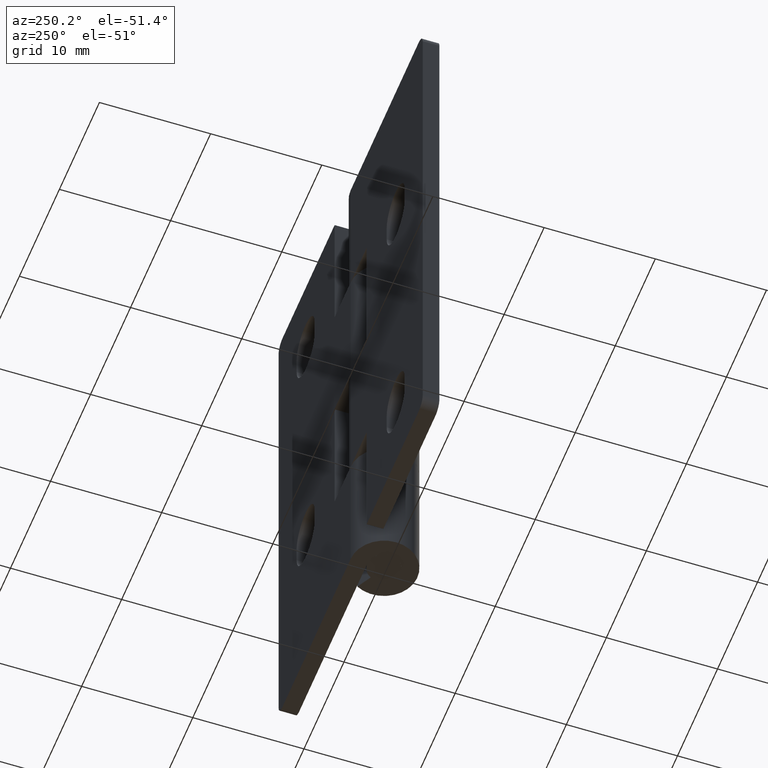
[diagram: clean part render]
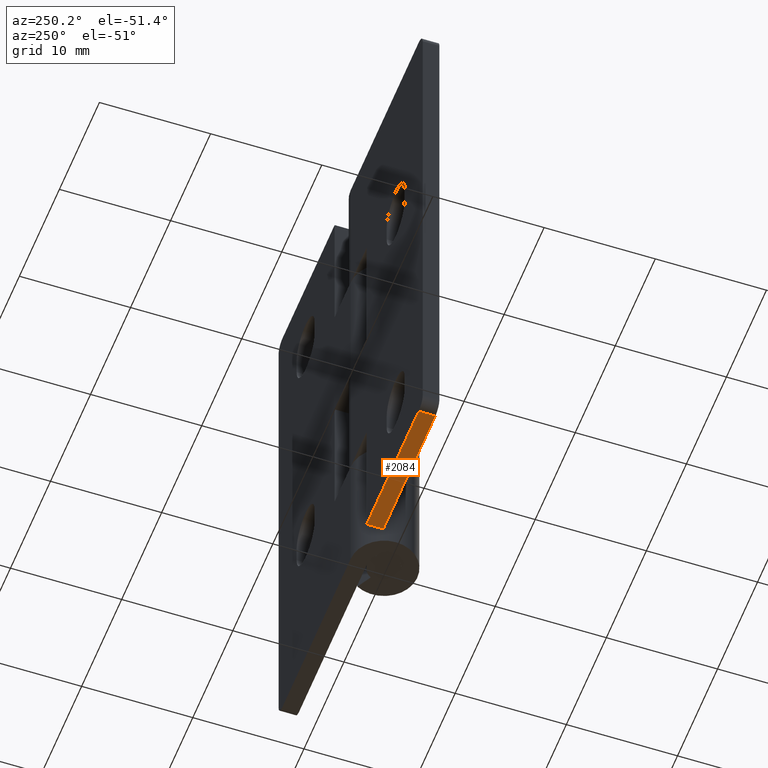
[diagram: same view with one face highlighted and labeled with its STEP entity id]
A machine part, auxiliary view. The second image highlights one B-rep face of the part: STEP entity #2084.
In plain terms, the highlighted face is a freeform B-spline surface patch.
Its self-contained STEP definition (entity closure, byte-faithful):
#1282=CARTESIAN_POINT('',(-17.0,3.0,0.0));
#1283=VERTEX_POINT('',#1282);
#1299=CARTESIAN_POINT('',(-17.0,1.499999999999800,0.0));
#1300=VERTEX_POINT('',#1299);
#1301=CARTESIAN_POINT('',(-17.0,1.499999999999800,0.0));
#1302=CARTESIAN_POINT('',(-17.0,3.0,0.0));
#1303=QUASI_UNIFORM_CURVE('',1,(#1301,#1302),.UNSPECIFIED.,.F.,.U.);
#1304=EDGE_CURVE('',#1300,#1283,#1303,.T.);
#1876=CARTESIAN_POINT('',(-4.0,1.499999999999800,0.0));
#1877=VERTEX_POINT('',#1876);
#1883=CARTESIAN_POINT('',(-4.0,3.0,0.0));
#1884=VERTEX_POINT('',#1883);
#1885=CARTESIAN_POINT('',(-4.0,1.499999999999800,0.0));
#1886=CARTESIAN_POINT('',(-4.0,3.0,0.0));
#1887=QUASI_UNIFORM_CURVE('',1,(#1885,#1886),.UNSPECIFIED.,.F.,.U.);
#1888=EDGE_CURVE('',#1877,#1884,#1887,.T.);
#2065=CARTESIAN_POINT('',(-17.649349974803481,3.074924997092720,0.0));
#2066=CARTESIAN_POINT('',(-3.350649676509351,3.074924997092720,0.0));
#2067=CARTESIAN_POINT('',(-17.649349974803481,1.425074962673946,0.0));
#2068=CARTESIAN_POINT('',(-3.350649676509351,1.425074962673946,0.0));
#2069=B_SPLINE_SURFACE_WITH_KNOTS('',1,1,((#2065,#2067),(#2066,#2068)),.UNSPECIFIED.,.F.,.F.,.U.,(2,2),(2,2),(0.0,14.298700298294129),(0.041708334948495,0.958291687403247),.UNSPECIFIED.);
#2070=CARTESIAN_POINT('',(-17.0,1.499999999999800,0.0));
#2071=CARTESIAN_POINT('',(-4.0,1.499999999999800,0.0));
#2072=QUASI_UNIFORM_CURVE('',1,(#2070,#2071),.UNSPECIFIED.,.F.,.U.);
#2073=EDGE_CURVE('',#1300,#1877,#2072,.T.);
#2074=ORIENTED_EDGE('',*,*,#2073,.F.);
#2075=ORIENTED_EDGE('',*,*,#1304,.T.);
#2076=CARTESIAN_POINT('',(-4.0,3.0,0.0));
#2077=CARTESIAN_POINT('',(-17.0,3.0,0.0));
#2078=QUASI_UNIFORM_CURVE('',1,(#2076,#2077),.UNSPECIFIED.,.F.,.U.);
#2079=EDGE_CURVE('',#1884,#1283,#2078,.T.);
#2080=ORIENTED_EDGE('',*,*,#2079,.F.);
#2081=ORIENTED_EDGE('',*,*,#1888,.F.);
#2082=EDGE_LOOP('',(#2074,#2075,#2080,#2081));
#2083=FACE_OUTER_BOUND('',#2082,.T.);
#2084=ADVANCED_FACE('',(#2083),#2069,.T.);